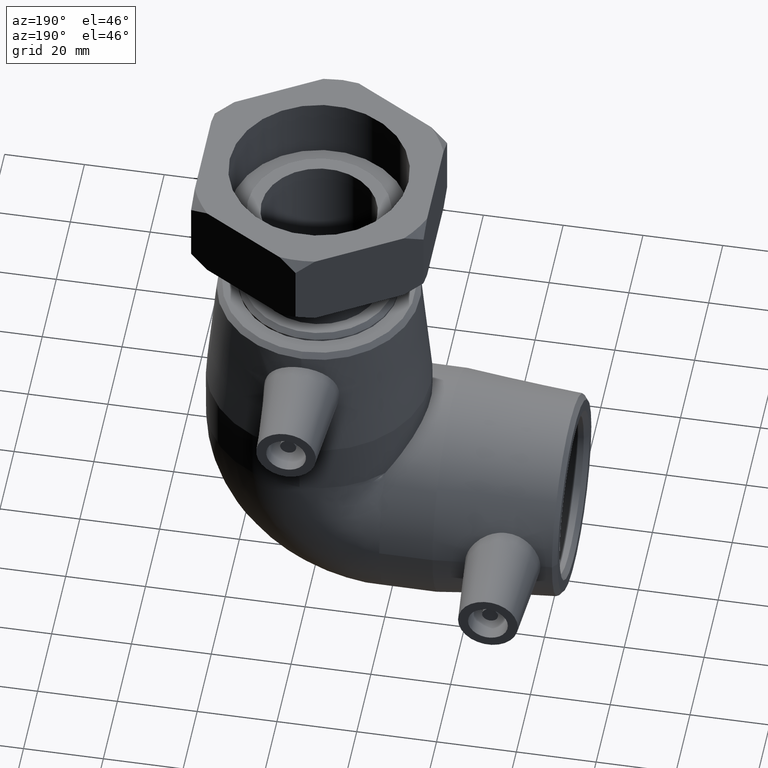
[diagram: clean part render]
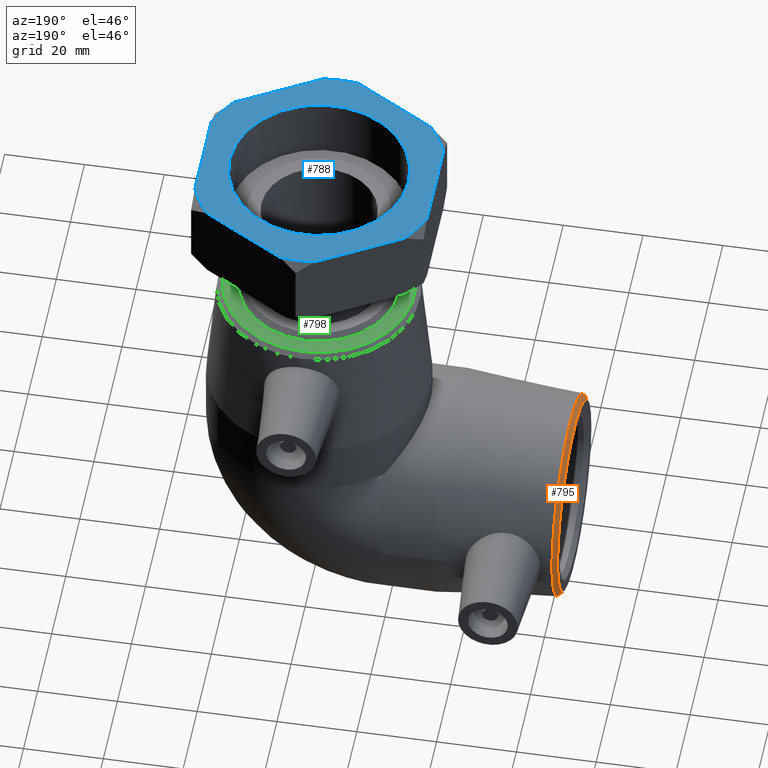
[diagram: same view with three faces highlighted in distinct colors, each labeled with its STEP entity id]
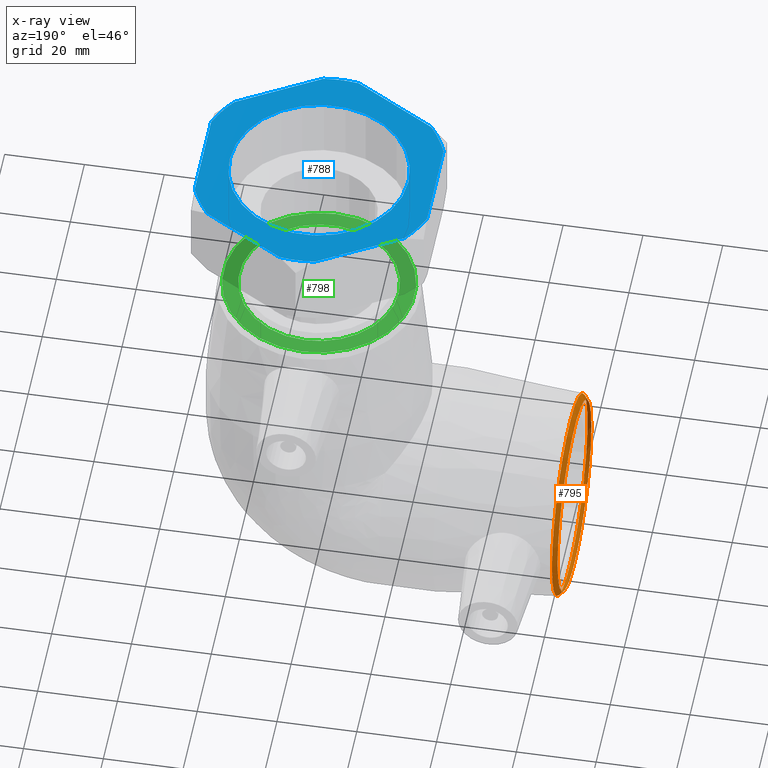
[diagram: x-ray of the same camera — body ghosted, the three highlighted faces saturated]
A machine part, auxiliary view with three faces highlighted in distinct colors.
The next image is the same camera in x-ray (body ghosted, the three faces saturated) — at least one of them is partly hidden behind the body in this view.
Their STEP definitions:

[orange] entity #795 — the highlighted conical surface has half-angle 47.608 deg.
#128=FACE_BOUND('',#261,.T.);
#188=FACE_OUTER_BOUND('',#260,.T.);
#260=EDGE_LOOP('',(#678));
#261=EDGE_LOOP('',(#679));
#346=CIRCLE('',#882,24.);
#348=CIRCLE('',#886,25.3091113587797);
#422=VERTEX_POINT('',#1379);
#424=VERTEX_POINT('',#1385);
#518=EDGE_CURVE('',#422,#422,#346,.T.);
#520=EDGE_CURVE('',#424,#424,#348,.T.);
#678=ORIENTED_EDGE('',*,*,#518,.T.);
#679=ORIENTED_EDGE('',*,*,#520,.T.);
#759=CONICAL_SURFACE('',#885,24.6545556793899,47.6084445159171);
#795=ADVANCED_FACE('',(#188,#128),#759,.T.);
#882=AXIS2_PLACEMENT_3D('',#1380,#1066,#1067);
#885=AXIS2_PLACEMENT_3D('',#1384,#1072,#1073);
#886=AXIS2_PLACEMENT_3D('',#1386,#1074,#1075);
#1066=DIRECTION('center_axis',(1.,-2.16840434497101E-18,0.));
#1067=DIRECTION('ref_axis',(-2.16840434497101E-18,-1.,0.));
#1072=DIRECTION('center_axis',(1.,-3.22323504166013E-33,-1.29681864909461E-15));
#1073=DIRECTION('ref_axis',(-1.05541760630488E-18,-1.,-3.14290010108596E-17));
#1074=DIRECTION('center_axis',(-1.,0.,0.));
#1075=DIRECTION('ref_axis',(0.,-1.,-6.12323399573676E-17));
#1379=CARTESIAN_POINT('',(-64.,24.,2.93915231795365E-15));
#1380=CARTESIAN_POINT('Origin',(-64.,3.85185988877447E-33,0.));
#1384=CARTESIAN_POINT('Origin',(-63.4024854162062,1.92592994438724E-33,
-7.74868055369838E-16));
#1385=CARTESIAN_POINT('',(-62.8049708324124,25.3091113587797,-3.09947222147935E-15));
#1386=CARTESIAN_POINT('Origin',(-62.8049708324124,0.,-1.54973611073968E-15));

[blue] entity #788 — the highlighted planar face has unit normal (0, 0, 1).
#19=LINE('',#1207,#37);
#23=LINE('',#1231,#41);
#26=LINE('',#1253,#44);
#31=LINE('',#1290,#49);
#34=LINE('',#1312,#52);
#36=LINE('',#1331,#54);
#37=VECTOR('',#960,23.4097772696045);
#41=VECTOR('',#966,23.4097772696046);
#44=VECTOR('',#971,23.4097772696046);
#49=VECTOR('',#978,23.4097772696046);
#52=VECTOR('',#983,23.4097772696045);
#54=VECTOR('',#987,23.4097772696046);
#102=PLANE('',#869);
#121=FACE_BOUND('',#247,.T.);
#181=FACE_OUTER_BOUND('',#246,.T.);
#246=EDGE_LOOP('',(#653,#654,#655,#656,#657,#658,#659,#660,#661,#662,#663,
#664));
#247=EDGE_LOOP('',(#665));
#326=CIRCLE('',#844,31.3915);
#327=CIRCLE('',#846,31.3915);
#328=CIRCLE('',#848,31.3915);
#329=CIRCLE('',#850,31.3915);
#330=CIRCLE('',#852,31.3915);
#331=CIRCLE('',#854,31.3915);
#339=CIRCLE('',#870,22.4225);
#378=VERTEX_POINT('',#1201);
#380=VERTEX_POINT('',#1206);
#386=VERTEX_POINT('',#1226);
#387=VERTEX_POINT('',#1230);
#392=VERTEX_POINT('',#1248);
#393=VERTEX_POINT('',#1252);
#399=VERTEX_POINT('',#1271);
#403=VERTEX_POINT('',#1286);
#404=VERTEX_POINT('',#1292);
#409=VERTEX_POINT('',#1308);
#410=VERTEX_POINT('',#1314);
#413=VERTEX_POINT('',#1327);
#415=VERTEX_POINT('',#1360);
#457=EDGE_CURVE('',#380,#378,#19,.T.);
#465=EDGE_CURVE('',#387,#386,#23,.T.);
#472=EDGE_CURVE('',#393,#392,#26,.T.);
#484=EDGE_CURVE('',#399,#403,#31,.T.);
#491=EDGE_CURVE('',#404,#409,#34,.T.);
#497=EDGE_CURVE('',#410,#413,#36,.T.);
#498=EDGE_CURVE('',#393,#403,#326,.T.);
#499=EDGE_CURVE('',#387,#392,#327,.T.);
#500=EDGE_CURVE('',#399,#413,#328,.T.);
#501=EDGE_CURVE('',#410,#409,#329,.T.);
#502=EDGE_CURVE('',#380,#386,#330,.T.);
#503=EDGE_CURVE('',#404,#378,#331,.T.);
#511=EDGE_CURVE('',#415,#415,#339,.T.);
#653=ORIENTED_EDGE('',*,*,#457,.T.);
#654=ORIENTED_EDGE('',*,*,#503,.F.);
#655=ORIENTED_EDGE('',*,*,#491,.T.);
#656=ORIENTED_EDGE('',*,*,#501,.F.);
#657=ORIENTED_EDGE('',*,*,#497,.T.);
#658=ORIENTED_EDGE('',*,*,#500,.F.);
#659=ORIENTED_EDGE('',*,*,#484,.T.);
#660=ORIENTED_EDGE('',*,*,#498,.F.);
#661=ORIENTED_EDGE('',*,*,#472,.T.);
#662=ORIENTED_EDGE('',*,*,#499,.F.);
#663=ORIENTED_EDGE('',*,*,#465,.T.);
#664=ORIENTED_EDGE('',*,*,#502,.F.);
#665=ORIENTED_EDGE('',*,*,#511,.T.);
#788=ADVANCED_FACE('',(#181,#121),#102,.T.);
#844=AXIS2_PLACEMENT_3D('',#1333,#990,#991);
#846=AXIS2_PLACEMENT_3D('',#1335,#994,#995);
#848=AXIS2_PLACEMENT_3D('',#1337,#998,#999);
#850=AXIS2_PLACEMENT_3D('',#1339,#1002,#1003);
#852=AXIS2_PLACEMENT_3D('',#1341,#1006,#1007);
#854=AXIS2_PLACEMENT_3D('',#1343,#1010,#1011);
#869=AXIS2_PLACEMENT_3D('',#1359,#1040,#1041);
#870=AXIS2_PLACEMENT_3D('',#1361,#1042,#1043);
#960=DIRECTION('',(0.866025403784438,0.500000000000001,-1.80277751848459E-16));
#966=DIRECTION('',(0.866025403784439,-0.499999999999999,-1.80277751848459E-16));
#971=DIRECTION('',(1.5844413775451E-15,-1.,-3.29828118472382E-31));
#978=DIRECTION('',(-0.866025403784438,-0.500000000000002,1.80277751848459E-16));
#983=DIRECTION('',(-1.05629425169673E-15,1.,2.19885412314921E-31));
#987=DIRECTION('',(-0.866025403784439,0.499999999999999,1.80277751848459E-16));
#990=DIRECTION('center_axis',(-2.08166817117217E-16,0.,-1.));
#991=DIRECTION('ref_axis',(1.,0.,-2.08166817117217E-16));
#994=DIRECTION('center_axis',(-2.08166817117217E-16,0.,-1.));
#995=DIRECTION('ref_axis',(1.,0.,-2.08166817117217E-16));
#998=DIRECTION('center_axis',(-2.08166817117217E-16,0.,-1.));
#999=DIRECTION('ref_axis',(1.,0.,-2.08166817117217E-16));
#1002=DIRECTION('center_axis',(-2.08166817117217E-16,0.,-1.));
#1003=DIRECTION('ref_axis',(1.,0.,-2.08166817117217E-16));
#1006=DIRECTION('center_axis',(-2.08166817117217E-16,0.,-1.));
#1007=DIRECTION('ref_axis',(1.,0.,-2.08166817117217E-16));
#1010=DIRECTION('center_axis',(-2.08166817117217E-16,0.,-1.));
#1011=DIRECTION('ref_axis',(1.,0.,-2.08166817117217E-16));
#1040=DIRECTION('center_axis',(2.08166817117217E-16,0.,1.));
#1041=DIRECTION('ref_axis',(1.,0.,0.));
#1042=DIRECTION('center_axis',(-2.08166817117217E-16,0.,-1.));
#1043=DIRECTION('ref_axis',(1.,0.,-2.08166817117217E-16));
#1201=CARTESIAN_POINT('',(24.700571868474,-19.3728681825989,104.));
#1206=CARTESIAN_POINT('',(4.42711005606098,-31.0777568174011,104.));
#1207=CARTESIAN_POINT('',(9.23310519340122,-28.3030142311337,104.));
#1226=CARTESIAN_POINT('',(-4.42711005606083,-31.0777568174012,104.));
#1230=CARTESIAN_POINT('',(-24.7005718684739,-19.3728681825989,104.));
#1231=CARTESIAN_POINT('',(-19.8945767311337,-22.1476107688663,104.));
#1248=CARTESIAN_POINT('',(-29.1276819245348,-11.7048886348024,104.));
#1252=CARTESIAN_POINT('',(-29.1276819245349,11.7048886348023,104.));
#1253=CARTESIAN_POINT('',(-29.1276819245348,-8.40843750000002,104.));
#1271=CARTESIAN_POINT('',(-4.42711005606092,31.0777568174012,104.));
#1286=CARTESIAN_POINT('',(-24.700571868474,19.3728681825988,104.));
#1290=CARTESIAN_POINT('',(-34.4584176934011,13.7391732688662,104.));
#1292=CARTESIAN_POINT('',(29.1276819245349,-11.7048886348022,104.));
#1308=CARTESIAN_POINT('',(29.1276819245349,11.7048886348023,104.));
#1312=CARTESIAN_POINT('',(29.1276819245349,8.40843750000005,104.));
#1314=CARTESIAN_POINT('',(24.700571868474,19.3728681825989,104.));
#1327=CARTESIAN_POINT('',(4.42711005606087,31.0777568174012,104.));
#1331=CARTESIAN_POINT('',(-5.33073576886633,36.7114517311337,104.));
#1333=CARTESIAN_POINT('Origin',(2.16493489801905E-14,0.,104.));
#1335=CARTESIAN_POINT('Origin',(2.16493489801905E-14,0.,104.));
#1337=CARTESIAN_POINT('Origin',(2.16493489801905E-14,0.,104.));
#1339=CARTESIAN_POINT('Origin',(2.16493489801905E-14,0.,104.));
#1341=CARTESIAN_POINT('Origin',(2.16493489801905E-14,0.,104.));
#1343=CARTESIAN_POINT('Origin',(2.16493489801905E-14,0.,104.));
#1359=CARTESIAN_POINT('Origin',(-33.63375,0.,104.));
#1360=CARTESIAN_POINT('',(-22.4225,0.,104.));
#1361=CARTESIAN_POINT('Origin',(2.16493489801906E-14,0.,104.));

[green] entity #798 — the highlighted planar face has unit normal (-0, 0, 1).
#105=PLANE('',#892);
#132=FACE_BOUND('',#268,.T.);
#191=FACE_OUTER_BOUND('',#267,.T.);
#267=EDGE_LOOP('',(#685));
#268=EDGE_LOOP('',(#686));
#342=CIRCLE('',#875,20.);
#350=CIRCLE('',#890,24.);
#418=VERTEX_POINT('',#1368);
#427=VERTEX_POINT('',#1426);
#514=EDGE_CURVE('',#418,#418,#342,.T.);
#523=EDGE_CURVE('',#427,#427,#350,.T.);
#685=ORIENTED_EDGE('',*,*,#523,.F.);
#686=ORIENTED_EDGE('',*,*,#514,.T.);
#798=ADVANCED_FACE('',(#191,#132),#105,.T.);
#875=AXIS2_PLACEMENT_3D('',#1369,#1052,#1053);
#890=AXIS2_PLACEMENT_3D('',#1427,#1082,#1083);
#892=AXIS2_PLACEMENT_3D('',#1430,#1086,#1087);
#1052=DIRECTION('center_axis',(6.12323399573677E-17,-2.16840434497101E-18,
-1.));
#1053=DIRECTION('ref_axis',(-1.,0.,-6.12323399573677E-17));
#1082=DIRECTION('center_axis',(6.12323399573677E-17,-2.16840434497101E-18,
-1.));
#1083=DIRECTION('ref_axis',(-1.32776472016298E-34,-1.,2.16840434497101E-18));
#1086=DIRECTION('center_axis',(-6.12323399573677E-17,2.16840434497101E-18,
1.));
#1087=DIRECTION('ref_axis',(1.,0.,0.));
#1368=CARTESIAN_POINT('',(-3.91886975727153E-15,20.,64.));
#1369=CARTESIAN_POINT('Origin',(-3.91886975727153E-15,0.,64.));
#1426=CARTESIAN_POINT('',(-9.79717439317882E-16,24.,64.));
#1427=CARTESIAN_POINT('Origin',(-3.91886975727153E-15,3.85185988877447E-33,
64.));
#1430=CARTESIAN_POINT('Origin',(-3.91886975727153E-15,25.2,64.));